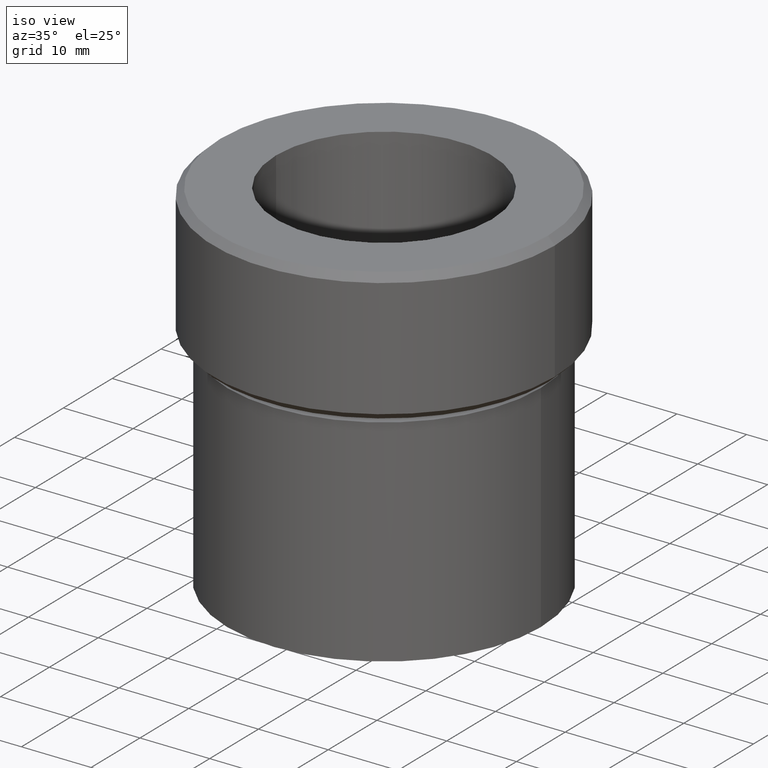
[diagram: clean part render]
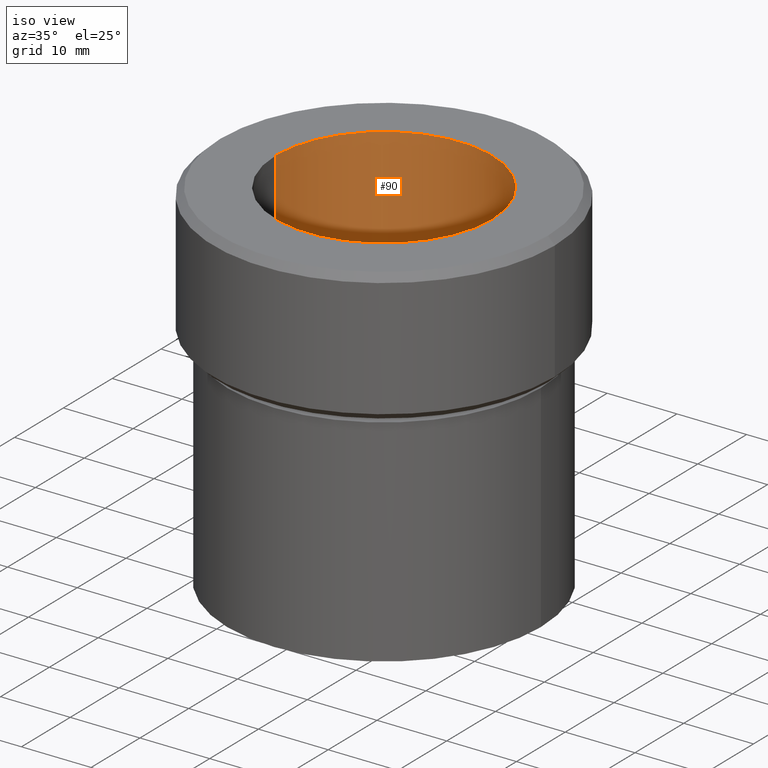
[diagram: same view with one face highlighted and labeled with its STEP entity id]
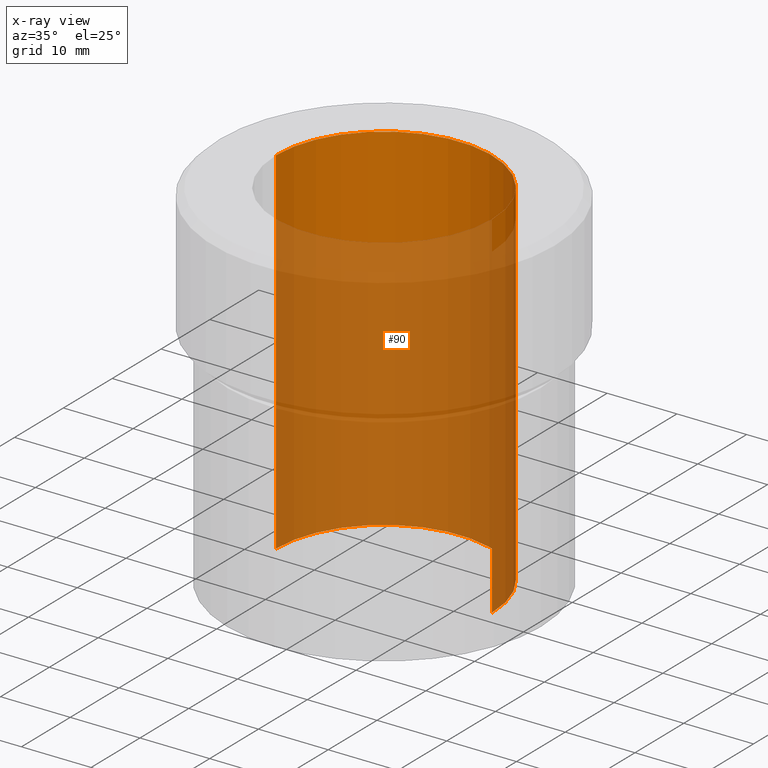
[diagram: x-ray of the same camera — body ghosted, the highlighted face saturated]
A machine part, iso view. The second image highlights one B-rep face of the part: STEP entity #90.
The next image is the same camera in x-ray: the body ghosted, the highlighted face saturated — about 76% of this face is hidden behind the body in this view.
In plain terms, the highlighted cylindrical surface (partial cylindrical patch) has radius 15.5 mm, axis along (-0, -0, 1).
Its self-contained STEP definition (entity closure, byte-faithful):
#4 = DIRECTION ( 'NONE',  ( 0.000000000000000000, 0.000000000000000000, -1.000000000000000000 ) ) ;
#5 = CARTESIAN_POINT ( 'NONE',  ( 0.000000000000000000, 0.000000000000000000, 0.000000000000000000 ) ) ;
#40 = CARTESIAN_POINT ( 'NONE',  ( 0.000000000000000000, 0.000000000000000000, -51.00000000000000000 ) ) ;
#49 = CYLINDRICAL_SURFACE ( 'NONE', #429, 15.50000000000000000 ) ;
#90 = ADVANCED_FACE ( 'NONE', ( #254 ), #49, .F. ) ;
#95 = EDGE_CURVE ( 'NONE', #523, #427, #330, .T. ) ;
#105 = EDGE_CURVE ( 'NONE', #427, #154, #485, .T. ) ;
#111 = CARTESIAN_POINT ( 'NONE',  ( -15.50000000000000000, 1.898202538678397557E-15, -51.00000000000000000 ) ) ;
#119 = VECTOR ( 'NONE', #406, 1000.000000000000000 ) ;
#125 = DIRECTION ( 'NONE',  ( -0.000000000000000000, -0.000000000000000000, 1.000000000000000000 ) ) ;
#154 = VERTEX_POINT ( 'NONE', #453 ) ;
#156 = AXIS2_PLACEMENT_3D ( 'NONE', #40, #4, #209 ) ;
#172 = DIRECTION ( 'NONE',  ( 1.000000000000000000, 0.000000000000000000, 0.000000000000000000 ) ) ;
#176 = ORIENTED_EDGE ( 'NONE', *, *, #495, .T. ) ;
#178 = VECTOR ( 'NONE', #125, 1000.000000000000000 ) ;
#189 = ORIENTED_EDGE ( 'NONE', *, *, #105, .T. ) ;
#200 = EDGE_CURVE ( 'NONE', #400, #154, #217, .T. ) ;
#209 = DIRECTION ( 'NONE',  ( -1.000000000000000000, 0.000000000000000000, 0.000000000000000000 ) ) ;
#217 = LINE ( 'NONE', #248, #178 ) ;
#218 = ORIENTED_EDGE ( 'NONE', *, *, #200, .F. ) ;
#248 = CARTESIAN_POINT ( 'NONE',  ( -15.50000000000000000, 1.898202538678397557E-15, -65.00000000000000000 ) ) ;
#252 = DIRECTION ( 'NONE',  ( -0.000000000000000000, -0.000000000000000000, 1.000000000000000000 ) ) ;
#254 = FACE_OUTER_BOUND ( 'NONE', #522, .T. ) ;
#262 = CARTESIAN_POINT ( 'NONE',  ( 0.000000000000000000, 0.000000000000000000, -65.00000000000000000 ) ) ;
#294 = DIRECTION ( 'NONE',  ( -0.000000000000000000, -0.000000000000000000, 1.000000000000000000 ) ) ;
#312 = ORIENTED_EDGE ( 'NONE', *, *, #95, .T. ) ;
#326 = AXIS2_PLACEMENT_3D ( 'NONE', #5, #294, #172 ) ;
#330 = LINE ( 'NONE', #375, #119 ) ;
#368 = CARTESIAN_POINT ( 'NONE',  ( 15.50000000000000000, 0.000000000000000000, -51.00000000000000000 ) ) ;
#375 = CARTESIAN_POINT ( 'NONE',  ( 15.50000000000000000, 0.000000000000000000, -65.00000000000000000 ) ) ;
#382 = CIRCLE ( 'NONE', #156, 15.50000000000000000 ) ;
#400 = VERTEX_POINT ( 'NONE', #111 ) ;
#406 = DIRECTION ( 'NONE',  ( -0.000000000000000000, -0.000000000000000000, 1.000000000000000000 ) ) ;
#408 = DIRECTION ( 'NONE',  ( 1.000000000000000000, 0.000000000000000000, 0.000000000000000000 ) ) ;
#427 = VERTEX_POINT ( 'NONE', #434 ) ;
#429 = AXIS2_PLACEMENT_3D ( 'NONE', #262, #252, #408 ) ;
#434 = CARTESIAN_POINT ( 'NONE',  ( 15.50000000000000000, 0.000000000000000000, 0.000000000000000000 ) ) ;
#453 = CARTESIAN_POINT ( 'NONE',  ( -15.50000000000000000, 1.898202538678397557E-15, 0.000000000000000000 ) ) ;
#485 = CIRCLE ( 'NONE', #326, 15.50000000000000000 ) ;
#495 = EDGE_CURVE ( 'NONE', #400, #523, #382, .T. ) ;
#522 = EDGE_LOOP ( 'NONE', ( #218, #176, #312, #189 ) ) ;
#523 = VERTEX_POINT ( 'NONE', #368 ) ;